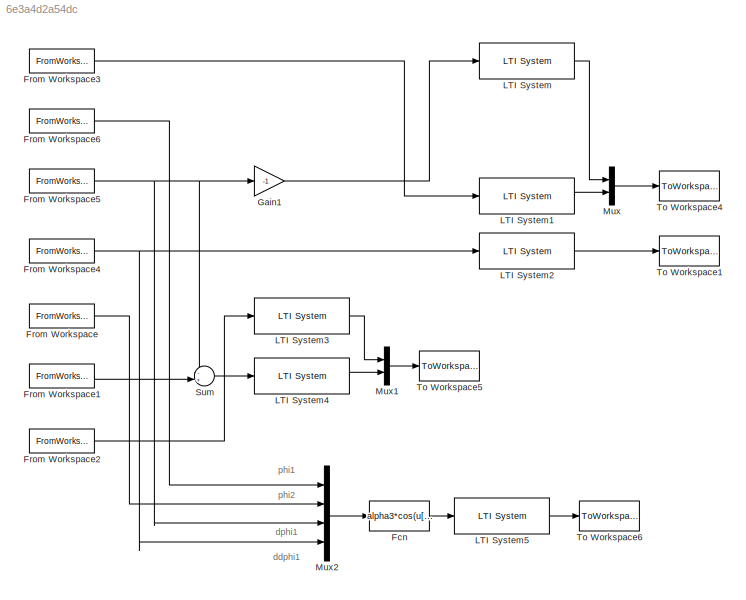
MODEL slx_6e3a4d2a54dc
KIND model
BLOCK [Fcn] Fcn
  Expr = alpha3*cos(u[1] - u[2])*u[4] - alpha3*u[3]^2*sin(u[1] - u[2]) - alpha5*sin(u[2])
BLOCK [FromWorkspace] From Workspace
  SampleTime = 0
  VariableName = [t, phi2]
BLOCK [FromWorkspace] From Workspace1
  SampleTime = 0
  VariableName = [t, dphi2]
BLOCK [FromWorkspace] From Workspace2
  SampleTime = 0
  VariableName = [t, ddphi2]
BLOCK [FromWorkspace] From Workspace3
  SampleTime = 0
  VariableName = [t, v]
BLOCK [FromWorkspace] From Workspace4
  SampleTime = 0
  VariableName = [t, ddphi1]
BLOCK [FromWorkspace] From Workspace5
  SampleTime = 0
  VariableName = [t, dphi1]
BLOCK [FromWorkspace] From Workspace6
  SampleTime = 0
  VariableName = [t, phi1]
BLOCK [Gain] Gain1
  Gain = -1
BLOCK [Reference] LTI System  REF=cstblocks/LTI System
  IC = []
  Ports = [1, 1]
  SourceBlock = cstblocks/LTI System
  SourceType = LTI Block
  sys = tf(1,[Tf1 1])^3
BLOCK [Reference] LTI System1  REF=cstblocks/LTI System
  IC = []
  Ports = [1, 1]
  SourceBlock = cstblocks/LTI System
  SourceType = LTI Block
  sys = tf(1,[Tf1 1])^3
BLOCK [Reference] LTI System2  REF=cstblocks/LTI System
  IC = []
  Ports = [1, 1]
  SourceBlock = cstblocks/LTI System
  SourceType = LTI Block
  sys = tf(1,[Tf1 1])^3
BLOCK [Reference] LTI System3  REF=cstblocks/LTI System
  IC = []
  Ports = [1, 1]
  SourceBlock = cstblocks/LTI System
  SourceType = LTI Block
  sys = tf(1,[Tf2 1])^3
BLOCK [Reference] LTI System4  REF=cstblocks/LTI System
  IC = []
  Ports = [1, 1]
  SourceBlock = cstblocks/LTI System
  SourceType = LTI Block
  sys = tf(1,[Tf2 1])^3
BLOCK [Reference] LTI System5  REF=cstblocks/LTI System
  IC = []
  Ports = [1, 1]
  SourceBlock = cstblocks/LTI System
  SourceType = LTI Block
  sys = tf(1,[Tf2 1])^3
BLOCK [Mux] Mux
  DisplayOption = bar
  Inputs = 2
  Ports = [2, 1]
BLOCK [Mux] Mux1
  DisplayOption = bar
  Inputs = 2
  Ports = [2, 1]
BLOCK [Mux] Mux2
  DisplayOption = bar
  Ports = [4, 1]
BLOCK [Sum] Sum
  IconShape = round
  Inputs = -+|
  Ports = [2, 1]
BLOCK [ToWorkspace] To Workspace1
  MaxDataPoints = inf
  Ports = [1]
  SampleTime = -1
  VariableName = Nf1
BLOCK [ToWorkspace] To Workspace4
  MaxDataPoints = inf
  Ports = [1]
  SampleTime = -1
  VariableName = Mf1
BLOCK [ToWorkspace] To Workspace5
  MaxDataPoints = inf
  Ports = [1]
  SampleTime = -1
  VariableName = Mf2
BLOCK [ToWorkspace] To Workspace6
  MaxDataPoints = inf
  Ports = [1]
  SampleTime = -1
  VariableName = Nf2
ANNOTATION (root): ddphi1
ANNOTATION (root): dphi1
ANNOTATION (root): phi1
ANNOTATION (root): phi2
LINE Fcn:1 -> LTI System5:1
LINE From Workspace1:1 -> Sum:2
LINE From Workspace2:1 -> LTI System3:1
LINE From Workspace3:1 -> LTI System1:1
NET From Workspace4:1 -> LTI System2:1, Mux2:4
NET From Workspace5:1 -> Gain1:1, Mux2:3, Sum:1
LINE From Workspace6:1 -> Mux2:1
LINE From Workspace:1 -> Mux2:2
LINE Gain1:1 -> LTI System:1
LINE LTI System1:1 -> Mux:2
LINE LTI System2:1 -> To Workspace1:1
LINE LTI System3:1 -> Mux1:1
LINE LTI System4:1 -> Mux1:2
LINE LTI System5:1 -> To Workspace6:1
LINE LTI System:1 -> Mux:1
LINE Mux1:1 -> To Workspace5:1
LINE Mux2:1 -> Fcn:1
LINE Mux:1 -> To Workspace4:1
LINE Sum:1 -> LTI System4:1
note: NET lines group one-source signal fan-out (src -> all destinations, sorted); 1:1 wires keep LINE
